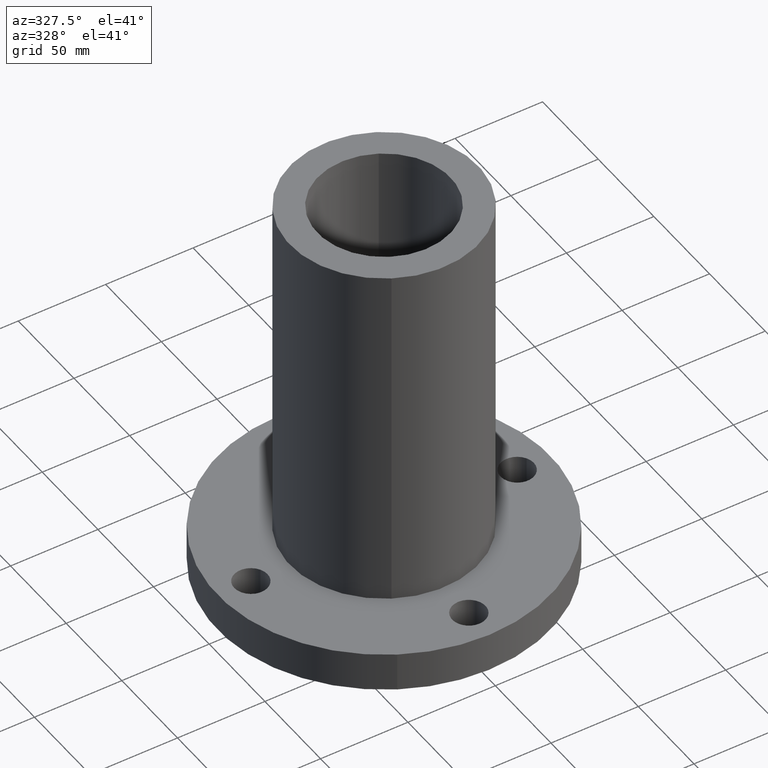
[diagram: clean part render]
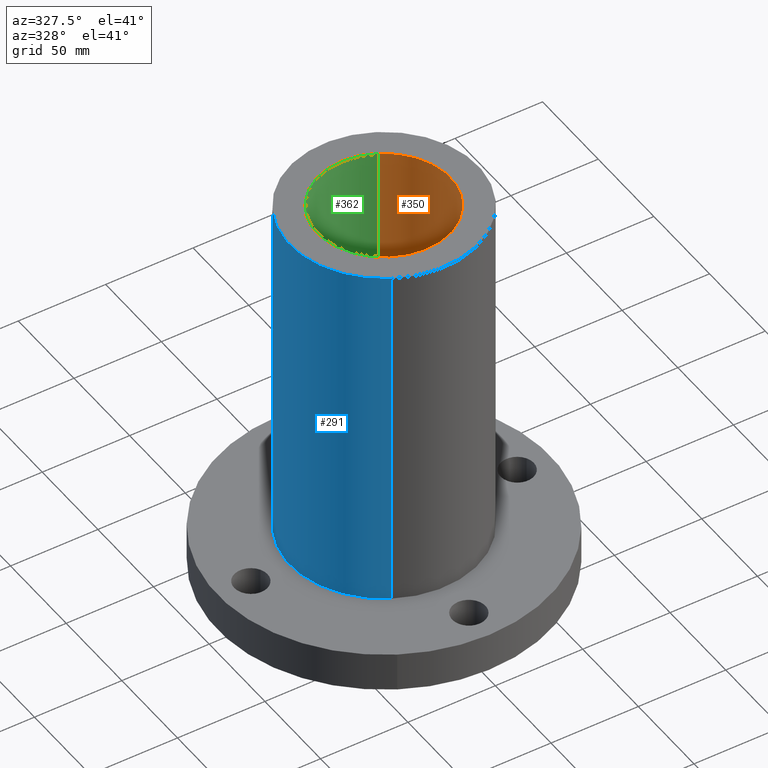
[diagram: same view with three faces highlighted in distinct colors, each labeled with its STEP entity id]
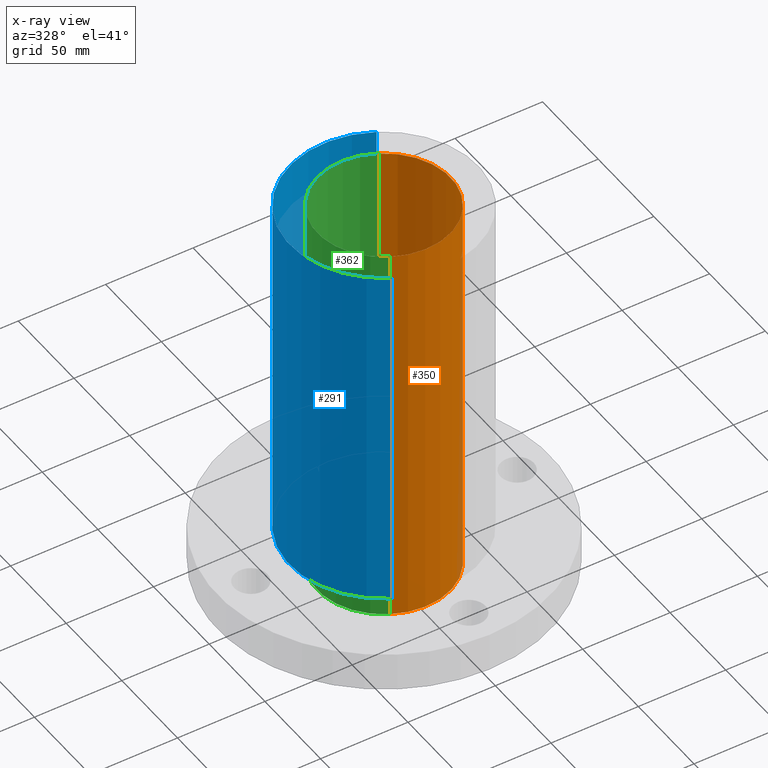
[diagram: x-ray of the same camera — body ghosted, the three highlighted faces saturated]
A machine part, auxiliary view with three faces highlighted in distinct colors.
The next image is the same camera in x-ray (body ghosted, the three faces saturated) — at least one of them is partly hidden behind the body in this view.
Their STEP definitions:

[orange] entity #350 — the highlighted cylindrical surface (partial cylindrical patch) has radius 38.1 mm, axis along (0, 0, -1).
#312=AXIS2_PLACEMENT_3D('Circle Axis2P3D',#310,#311,$) ;
#323=AXIS2_PLACEMENT_3D('Cylinder Axis2P3D',#320,#321,#322) ;
#334=AXIS2_PLACEMENT_3D('Circle Axis2P3D',#332,#333,$) ;
#305=CARTESIAN_POINT('Vertex',(-0.719138307909,-1.31637384284,8.93750000004)) ;
#307=CARTESIAN_POINT('Vertex',(0.719138307909,1.31637384284,8.93750000004)) ;
#310=CARTESIAN_POINT('Axis2P3D Location',(0.,0.,8.93750000004)) ;
#320=CARTESIAN_POINT('Axis2P3D Location',(0.,0.,4.43750000002)) ;
#325=CARTESIAN_POINT('Line Origine',(0.719138307909,1.31637384284,4.43750000002)) ;
#329=CARTESIAN_POINT('Vertex',(0.719138307909,1.31637384284,-0.0625000000002)) ;
#332=CARTESIAN_POINT('Axis2P3D Location',(0.,0.,-0.0625000000002)) ;
#336=CARTESIAN_POINT('Vertex',(-0.719138307909,-1.31637384284,-0.0625000000002)) ;
#339=CARTESIAN_POINT('Line Origine',(-0.719138307909,-1.31637384284,4.43750000002)) ;
#311=DIRECTION('Axis2P3D Direction',(0.,0.,-0.0393700787402)) ;
#321=DIRECTION('Axis2P3D Direction',(0.,0.,-0.0393700787402)) ;
#322=DIRECTION('Axis2P3D XDirection',(-0.0188750212049,-0.0345504945626,0.)) ;
#326=DIRECTION('Vector Direction',(0.,0.,-0.0393700787402)) ;
#333=DIRECTION('Axis2P3D Direction',(0.,0.,-0.0393700787402)) ;
#340=DIRECTION('Vector Direction',(0.,0.,-0.0393700787402)) ;
#327=VECTOR('Line Direction',#326,0.0393700787402) ;
#341=VECTOR('Line Direction',#340,0.0393700787402) ;
#345=ORIENTED_EDGE('',*,*,#314,.F.) ;
#346=ORIENTED_EDGE('',*,*,#331,.T.) ;
#347=ORIENTED_EDGE('',*,*,#338,.T.) ;
#348=ORIENTED_EDGE('',*,*,#343,.F.) ;
#350=ADVANCED_FACE('PartBody',(#349),#324,.F.) ;
#313=CIRCLE('generated circle',#312,1.50000000001) ;
#335=CIRCLE('generated circle',#334,1.50000000001) ;
#324=CYLINDRICAL_SURFACE('generated cylinder',#323,1.50000000001) ;
#314=EDGE_CURVE('',#308,#306,#313,.T.) ;
#331=EDGE_CURVE('',#308,#330,#328,.T.) ;
#338=EDGE_CURVE('',#330,#337,#335,.T.) ;
#343=EDGE_CURVE('',#306,#337,#342,.T.) ;
#344=EDGE_LOOP('',(#345,#346,#347,#348)) ;
#349=FACE_OUTER_BOUND('',#344,.T.) ;
#328=LINE('Line',#325,#327) ;
#342=LINE('Line',#339,#341) ;
#306=VERTEX_POINT('',#305) ;
#308=VERTEX_POINT('',#307) ;
#330=VERTEX_POINT('',#329) ;
#337=VERTEX_POINT('',#336) ;

[blue] entity #291 — the highlighted cylindrical surface (partial cylindrical patch) has radius 53.975 mm, axis along (0, 0, -1).
#238=AXIS2_PLACEMENT_3D('Cylinder Axis2P3D',#235,#236,#237) ;
#277=AXIS2_PLACEMENT_3D('Circle Axis2P3D',#275,#276,$) ;
#282=AXIS2_PLACEMENT_3D('Circle Axis2P3D',#280,#281,$) ;
#235=CARTESIAN_POINT('Axis2P3D Location',(0.,0.,4.43750000002)) ;
#244=CARTESIAN_POINT('Vertex',(1.01877926954,1.86486294402,0.877500000004)) ;
#246=CARTESIAN_POINT('Vertex',(-1.01877926954,-1.86486294402,0.877500000004)) ;
#249=CARTESIAN_POINT('Line Origine',(1.01877926954,1.86486294402,4.90750000002)) ;
#253=CARTESIAN_POINT('Vertex',(1.01877926954,1.86486294402,8.93750000004)) ;
#260=CARTESIAN_POINT('Vertex',(-1.01877926954,-1.86486294402,8.93750000004)) ;
#263=CARTESIAN_POINT('Line Origine',(-1.01877926954,-1.86486294402,4.90750000002)) ;
#275=CARTESIAN_POINT('Axis2P3D Location',(0.,0.,0.877500000004)) ;
#280=CARTESIAN_POINT('Axis2P3D Location',(0.,0.,8.93750000004)) ;
#236=DIRECTION('Axis2P3D Direction',(0.,0.,-0.0393700787402)) ;
#237=DIRECTION('Axis2P3D XDirection',(-0.0188750212049,-0.0345504945626,0.)) ;
#250=DIRECTION('Vector Direction',(0.,0.,-0.0393700787402)) ;
#264=DIRECTION('Vector Direction',(0.,0.,-0.0393700787402)) ;
#276=DIRECTION('Axis2P3D Direction',(0.,0.,-0.0393700787402)) ;
#281=DIRECTION('Axis2P3D Direction',(0.,0.,-0.0393700787402)) ;
#251=VECTOR('Line Direction',#250,0.0393700787402) ;
#265=VECTOR('Line Direction',#264,0.0393700787402) ;
#286=ORIENTED_EDGE('',*,*,#279,.F.) ;
#287=ORIENTED_EDGE('',*,*,#267,.T.) ;
#288=ORIENTED_EDGE('',*,*,#284,.T.) ;
#289=ORIENTED_EDGE('',*,*,#255,.F.) ;
#291=ADVANCED_FACE('PartBody',(#290),#239,.T.) ;
#278=CIRCLE('generated circle',#277,2.12500000001) ;
#283=CIRCLE('generated circle',#282,2.12500000001) ;
#239=CYLINDRICAL_SURFACE('generated cylinder',#238,2.12500000001) ;
#255=EDGE_CURVE('',#245,#254,#252,.F.) ;
#267=EDGE_CURVE('',#247,#261,#266,.F.) ;
#279=EDGE_CURVE('',#247,#245,#278,.T.) ;
#284=EDGE_CURVE('',#261,#254,#283,.T.) ;
#285=EDGE_LOOP('',(#286,#287,#288,#289)) ;
#290=FACE_OUTER_BOUND('',#285,.T.) ;
#252=LINE('Line',#249,#251) ;
#266=LINE('Line',#263,#265) ;
#245=VERTEX_POINT('',#244) ;
#247=VERTEX_POINT('',#246) ;
#254=VERTEX_POINT('',#253) ;
#261=VERTEX_POINT('',#260) ;

[green] entity #362 — the highlighted cylindrical surface (partial cylindrical patch) has radius 38.1 mm, axis along (0, 0, -1).
#303=AXIS2_PLACEMENT_3D('Circle Axis2P3D',#301,#302,$) ;
#323=AXIS2_PLACEMENT_3D('Cylinder Axis2P3D',#320,#321,#322) ;
#353=AXIS2_PLACEMENT_3D('Circle Axis2P3D',#351,#352,$) ;
#301=CARTESIAN_POINT('Axis2P3D Location',(0.,0.,8.93750000004)) ;
#305=CARTESIAN_POINT('Vertex',(-0.719138307909,-1.31637384284,8.93750000004)) ;
#307=CARTESIAN_POINT('Vertex',(0.719138307909,1.31637384284,8.93750000004)) ;
#320=CARTESIAN_POINT('Axis2P3D Location',(0.,0.,4.43750000002)) ;
#325=CARTESIAN_POINT('Line Origine',(0.719138307909,1.31637384284,4.43750000002)) ;
#329=CARTESIAN_POINT('Vertex',(0.719138307909,1.31637384284,-0.0625000000002)) ;
#336=CARTESIAN_POINT('Vertex',(-0.719138307909,-1.31637384284,-0.0625000000002)) ;
#339=CARTESIAN_POINT('Line Origine',(-0.719138307909,-1.31637384284,4.43750000002)) ;
#351=CARTESIAN_POINT('Axis2P3D Location',(0.,0.,-0.0625000000002)) ;
#302=DIRECTION('Axis2P3D Direction',(0.,0.,-0.0393700787402)) ;
#321=DIRECTION('Axis2P3D Direction',(0.,0.,-0.0393700787402)) ;
#322=DIRECTION('Axis2P3D XDirection',(-0.0188750212049,-0.0345504945626,0.)) ;
#326=DIRECTION('Vector Direction',(0.,0.,-0.0393700787402)) ;
#340=DIRECTION('Vector Direction',(0.,0.,-0.0393700787402)) ;
#352=DIRECTION('Axis2P3D Direction',(0.,0.,-0.0393700787402)) ;
#327=VECTOR('Line Direction',#326,0.0393700787402) ;
#341=VECTOR('Line Direction',#340,0.0393700787402) ;
#357=ORIENTED_EDGE('',*,*,#309,.F.) ;
#358=ORIENTED_EDGE('',*,*,#343,.T.) ;
#359=ORIENTED_EDGE('',*,*,#355,.T.) ;
#360=ORIENTED_EDGE('',*,*,#331,.F.) ;
#362=ADVANCED_FACE('PartBody',(#361),#324,.F.) ;
#304=CIRCLE('generated circle',#303,1.50000000001) ;
#354=CIRCLE('generated circle',#353,1.50000000001) ;
#324=CYLINDRICAL_SURFACE('generated cylinder',#323,1.50000000001) ;
#309=EDGE_CURVE('',#306,#308,#304,.T.) ;
#331=EDGE_CURVE('',#308,#330,#328,.T.) ;
#343=EDGE_CURVE('',#306,#337,#342,.T.) ;
#355=EDGE_CURVE('',#337,#330,#354,.T.) ;
#356=EDGE_LOOP('',(#357,#358,#359,#360)) ;
#361=FACE_OUTER_BOUND('',#356,.T.) ;
#328=LINE('Line',#325,#327) ;
#342=LINE('Line',#339,#341) ;
#306=VERTEX_POINT('',#305) ;
#308=VERTEX_POINT('',#307) ;
#330=VERTEX_POINT('',#329) ;
#337=VERTEX_POINT('',#336) ;